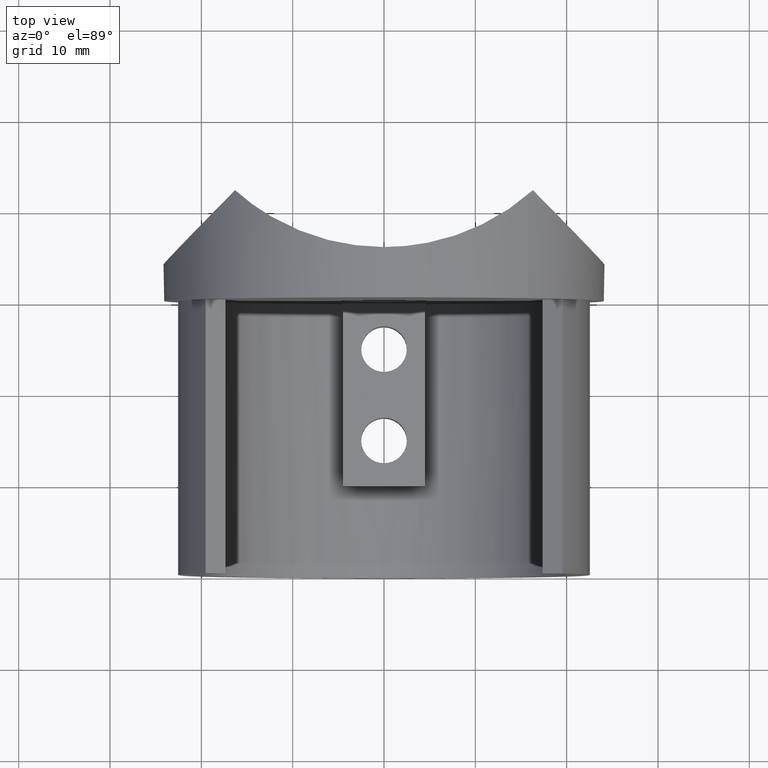
[diagram: clean part render]
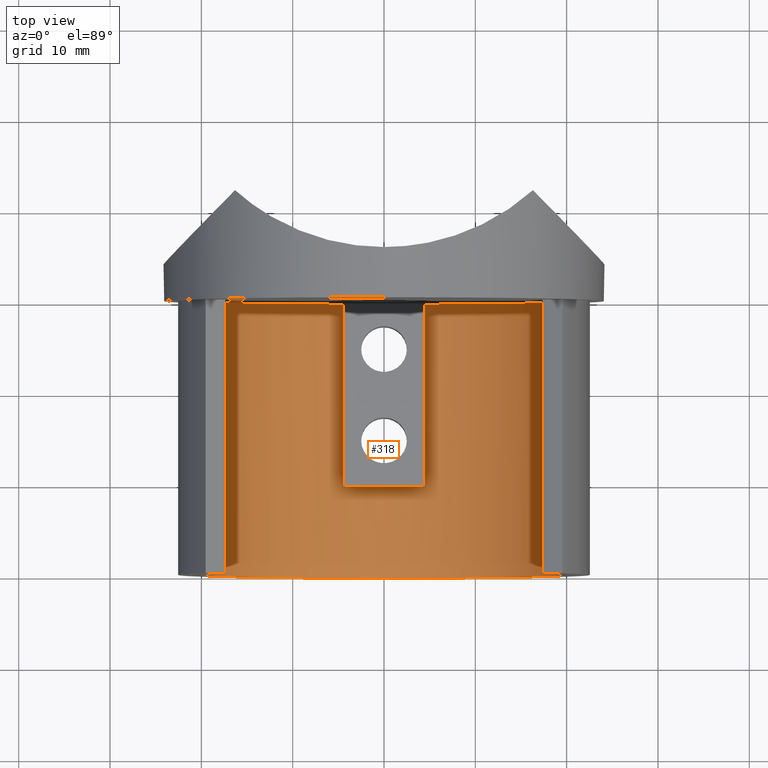
[diagram: same view with one face highlighted and labeled with its STEP entity id]
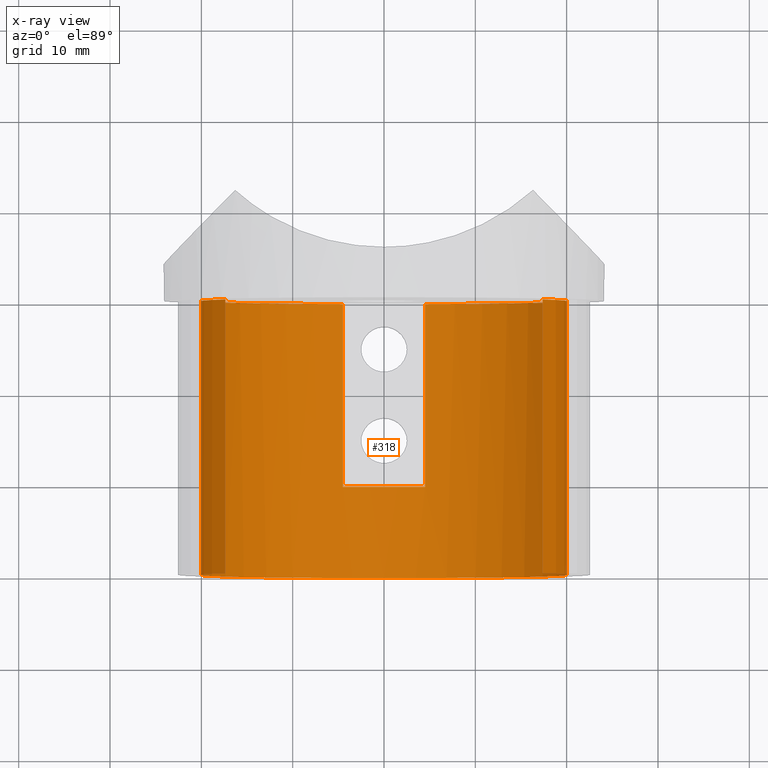
[diagram: x-ray of the same camera — body ghosted, the highlighted face saturated]
A machine part, top view. The second image highlights one B-rep face of the part: STEP entity #318.
The next image is the same camera in x-ray: the body ghosted, the highlighted face saturated — about 1% of this face is hidden behind the body in this view.
In plain terms, the highlighted cylindrical surface (partial cylindrical patch) has radius 20.05 mm, axis along (-0, 1, -0).
Its self-contained STEP definition (entity closure, byte-faithful):
#18 = AXIS2_PLACEMENT_3D ( 'NONE', #8669, #11642, #687 ) ;
#127 = DIRECTION ( 'NONE',  ( -0.0000000000000000000, 1.000000000000000000, -0.0000000000000000000 ) ) ;
#142 = AXIS2_PLACEMENT_3D ( 'NONE', #9790, #7925, #6754 ) ;
#218 = CARTESIAN_POINT ( 'NONE',  ( -4.500000000000000000, -30.00000000000000000, -19.53848765897710700 ) ) ;
#318 = ADVANCED_FACE ( 'NONE', ( #9618 ), #1456, .F. ) ;
#687 = DIRECTION ( 'NONE',  ( 0.0000000000000000000, 0.0000000000000000000, -1.000000000000000000 ) ) ;
#746 = EDGE_CURVE ( 'NONE', #10534, #8495, #12545, .T. ) ;
#987 = DIRECTION ( 'NONE',  ( -0.0000000000000000000, 1.000000000000000000, -0.0000000000000000000 ) ) ;
#1146 = LINE ( 'NONE', #2165, #7091 ) ;
#1456 = CYLINDRICAL_SURFACE ( 'NONE', #4040, 20.05000000000001500 ) ;
#1515 = EDGE_CURVE ( 'NONE', #2862, #11506, #7354, .T. ) ;
#1908 = CARTESIAN_POINT ( 'NONE',  ( 17.36380895600840200, -30.00000000000000000, 10.02500067527394400 ) ) ;
#1927 = ORIENTED_EDGE ( 'NONE', *, *, #746, .F. ) ;
#1952 = EDGE_CURVE ( 'NONE', #12850, #2862, #11017, .T. ) ;
#1993 = ORIENTED_EDGE ( 'NONE', *, *, #5874, .T. ) ;
#2165 = CARTESIAN_POINT ( 'NONE',  ( 4.500000000000000000, -30.00000000000000000, -19.53848765897710700 ) ) ;
#2451 = AXIS2_PLACEMENT_3D ( 'NONE', #12763, #9889, #5897 ) ;
#2535 = CIRCLE ( 'NONE', #142, 20.05000000000001500 ) ;
#2738 = EDGE_LOOP ( 'NONE', ( #12621, #9804, #6561, #1927, #11446, #1993, #6807, #4713 ) ) ;
#2862 = VERTEX_POINT ( 'NONE', #10232 ) ;
#3667 = EDGE_CURVE ( 'NONE', #10534, #7117, #4125, .T. ) ;
#3729 = CARTESIAN_POINT ( 'NONE',  ( -17.36380895600840200, 0.0000000000000000000, 10.02500067527394400 ) ) ;
#3900 = DIRECTION ( 'NONE',  ( 0.0000000000000000000, 0.0000000000000000000, 1.000000000000000000 ) ) ;
#4040 = AXIS2_PLACEMENT_3D ( 'NONE', #4915, #987, #3900 ) ;
#4125 = LINE ( 'NONE', #1908, #4283 ) ;
#4156 = CARTESIAN_POINT ( 'NONE',  ( -17.36380895600840200, -30.00000000000000000, 10.02500067527394200 ) ) ;
#4283 = VECTOR ( 'NONE', #11003, 1000.000000000000000 ) ;
#4664 = CARTESIAN_POINT ( 'NONE',  ( -4.500000000000000000, 0.0000000000000000000, -19.53848765897710700 ) ) ;
#4713 = ORIENTED_EDGE ( 'NONE', *, *, #1515, .F. ) ;
#4720 = EDGE_CURVE ( 'NONE', #8495, #8906, #12900, .T. ) ;
#4813 = AXIS2_PLACEMENT_3D ( 'NONE', #10330, #127, #10209 ) ;
#4915 = CARTESIAN_POINT ( 'NONE',  ( 0.0000000000000000000, -30.00000000000000000, 0.0000000000000000000 ) ) ;
#5647 = EDGE_CURVE ( 'NONE', #12850, #8906, #9764, .T. ) ;
#5731 = EDGE_CURVE ( 'NONE', #11506, #6902, #1146, .T. ) ;
#5874 = EDGE_CURVE ( 'NONE', #7117, #6902, #2535, .T. ) ;
#5897 = DIRECTION ( 'NONE',  ( 3.552713678800500900E-015, 0.0000000000000000000, 1.000000000000000000 ) ) ;
#6561 = ORIENTED_EDGE ( 'NONE', *, *, #4720, .F. ) ;
#6647 = DIRECTION ( 'NONE',  ( -0.0000000000000000000, 1.000000000000000000, -0.0000000000000000000 ) ) ;
#6754 = DIRECTION ( 'NONE',  ( 0.0000000000000000000, 0.0000000000000000000, -1.000000000000000000 ) ) ;
#6807 = ORIENTED_EDGE ( 'NONE', *, *, #5731, .F. ) ;
#6902 = VERTEX_POINT ( 'NONE', #8226 ) ;
#6919 = VECTOR ( 'NONE', #8204, 1000.000000000000000 ) ;
#7091 = VECTOR ( 'NONE', #11227, 1000.000000000000000 ) ;
#7117 = VERTEX_POINT ( 'NONE', #11440 ) ;
#7354 = CIRCLE ( 'NONE', #2451, 20.05000000000001500 ) ;
#7707 = VECTOR ( 'NONE', #6647, 1000.000000000000000 ) ;
#7925 = DIRECTION ( 'NONE',  ( -0.0000000000000000000, 1.000000000000000000, -0.0000000000000000000 ) ) ;
#8081 = CARTESIAN_POINT ( 'NONE',  ( -17.36380895600840200, -30.00000000000000000, 10.02500067527394200 ) ) ;
#8204 = DIRECTION ( 'NONE',  ( 0.0000000000000000000, -1.000000000000000000, 0.0000000000000000000 ) ) ;
#8226 = CARTESIAN_POINT ( 'NONE',  ( 4.500000000000000000, 0.0000000000000000000, -19.53848765897710700 ) ) ;
#8495 = VERTEX_POINT ( 'NONE', #8081 ) ;
#8669 = CARTESIAN_POINT ( 'NONE',  ( 0.0000000000000000000, -30.00000000000000000, 0.0000000000000000000 ) ) ;
#8906 = VERTEX_POINT ( 'NONE', #3729 ) ;
#9618 = FACE_OUTER_BOUND ( 'NONE', #2738, .T. ) ;
#9764 = CIRCLE ( 'NONE', #4813, 20.05000000000001500 ) ;
#9790 = CARTESIAN_POINT ( 'NONE',  ( 0.0000000000000000000, 0.0000000000000000000, 0.0000000000000000000 ) ) ;
#9804 = ORIENTED_EDGE ( 'NONE', *, *, #5647, .T. ) ;
#9889 = DIRECTION ( 'NONE',  ( -0.0000000000000000000, -1.000000000000000000, -0.0000000000000000000 ) ) ;
#10209 = DIRECTION ( 'NONE',  ( 0.0000000000000000000, 0.0000000000000000000, -1.000000000000000000 ) ) ;
#10232 = CARTESIAN_POINT ( 'NONE',  ( -4.500000000000000000, -20.00000000000000000, -19.53848765897710700 ) ) ;
#10330 = CARTESIAN_POINT ( 'NONE',  ( 0.0000000000000000000, 0.0000000000000000000, 0.0000000000000000000 ) ) ;
#10534 = VERTEX_POINT ( 'NONE', #11413 ) ;
#11003 = DIRECTION ( 'NONE',  ( -0.0000000000000000000, 1.000000000000000000, -0.0000000000000000000 ) ) ;
#11007 = CARTESIAN_POINT ( 'NONE',  ( 4.500000000000000000, -20.00000000000000000, -19.53848765897710700 ) ) ;
#11017 = LINE ( 'NONE', #218, #6919 ) ;
#11227 = DIRECTION ( 'NONE',  ( -0.0000000000000000000, 1.000000000000000000, -0.0000000000000000000 ) ) ;
#11413 = CARTESIAN_POINT ( 'NONE',  ( 17.36380895600840200, -30.00000000000000000, 10.02500067527394400 ) ) ;
#11440 = CARTESIAN_POINT ( 'NONE',  ( 17.36380895600840200, -0.0000000000000000000, 10.02500067527394400 ) ) ;
#11446 = ORIENTED_EDGE ( 'NONE', *, *, #3667, .T. ) ;
#11506 = VERTEX_POINT ( 'NONE', #11007 ) ;
#11642 = DIRECTION ( 'NONE',  ( -0.0000000000000000000, 1.000000000000000000, -0.0000000000000000000 ) ) ;
#12545 = CIRCLE ( 'NONE', #18, 20.05000000000001500 ) ;
#12621 = ORIENTED_EDGE ( 'NONE', *, *, #1952, .F. ) ;
#12763 = CARTESIAN_POINT ( 'NONE',  ( 0.0000000000000000000, -20.00000000000000000, 0.0000000000000000000 ) ) ;
#12850 = VERTEX_POINT ( 'NONE', #4664 ) ;
#12900 = LINE ( 'NONE', #4156, #7707 ) ;